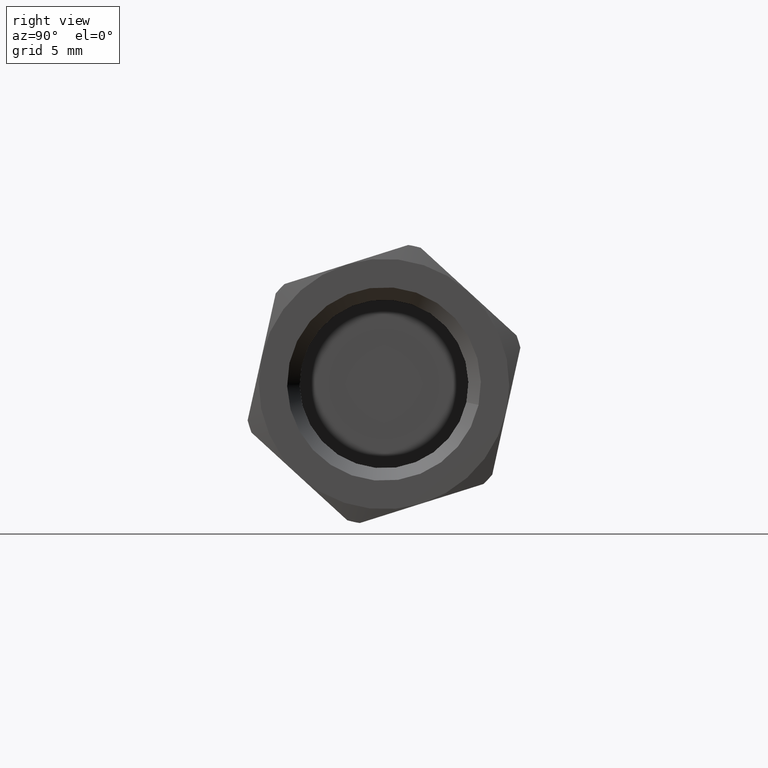
[diagram: clean part render]
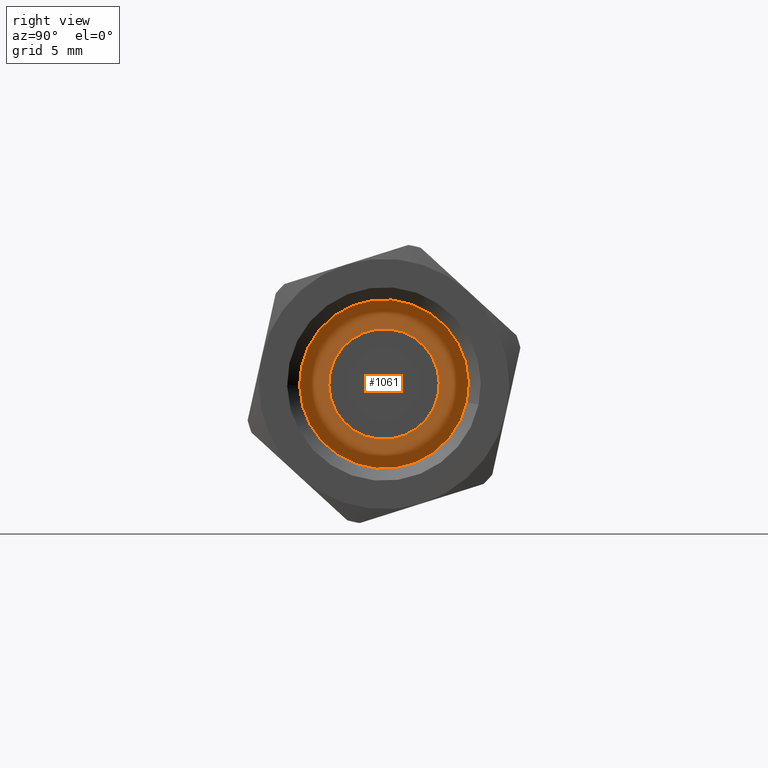
[diagram: same view with one face highlighted and labeled with its STEP entity id]
A machine part, right view. The second image highlights one B-rep face of the part: STEP entity #1061.
In plain terms, the highlighted planar face has unit normal (1, 0, 0).
Its self-contained STEP definition (entity closure, byte-faithful):
#929=CARTESIAN_POINT('',(33.000000000000014,5.587133599395495,-1.237313376839491));
#930=VERTEX_POINT('',#929);
#931=CARTESIAN_POINT('',(33.000000000000014,-1.464126E-033,5.345529E-050));
#932=DIRECTION('',(-1.0,-1.550753E-034,3.434260E-035));
#933=DIRECTION('',(-1.588325E-034,0.976344884123284,-0.216219026096897));
#934=AXIS2_PLACEMENT_3D('',#931,#932,#933);
#935=CIRCLE('',#934,5.7225);
#936=EDGE_CURVE('',#930,#930,#935,.T.);
#1038=CARTESIAN_POINT('',(33.000000000000014,3.661293315462316,-0.810821347863362));
#1039=VERTEX_POINT('',#1038);
#1040=CARTESIAN_POINT('',(33.000000000000014,-1.464126E-033,5.345529E-050));
#1041=DIRECTION('',(-1.0,-1.550753E-034,3.434260E-035));
#1042=DIRECTION('',(-1.588325E-034,0.976344884123284,-0.216219026096897));
#1043=AXIS2_PLACEMENT_3D('',#1040,#1041,#1042);
#1044=CIRCLE('',#1043,3.75);
#1045=EDGE_CURVE('',#1039,#1039,#1044,.T.);
#1050=CARTESIAN_POINT('',(33.000000000000014,4.624213457428906,-1.024067362351427));
#1051=DIRECTION('',(1.0,0.0,0.0));
#1052=DIRECTION('',(0.0,-0.216219026096897,-0.976344884123284));
#1053=AXIS2_PLACEMENT_3D('',#1050,#1051,#1052);
#1054=PLANE('',#1053);
#1055=ORIENTED_EDGE('',*,*,#936,.F.);
#1056=EDGE_LOOP('',(#1055));
#1057=FACE_OUTER_BOUND('',#1056,.T.);
#1058=ORIENTED_EDGE('',*,*,#1045,.T.);
#1059=EDGE_LOOP('',(#1058));
#1060=FACE_BOUND('',#1059,.T.);
#1061=ADVANCED_FACE('',(#1057,#1060),#1054,.T.);